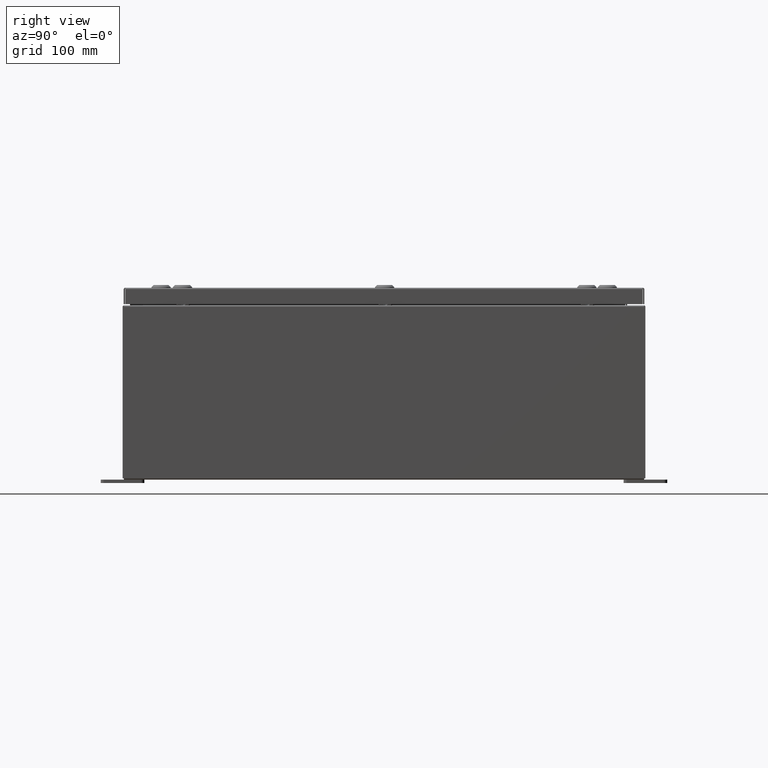
[diagram: clean part render]
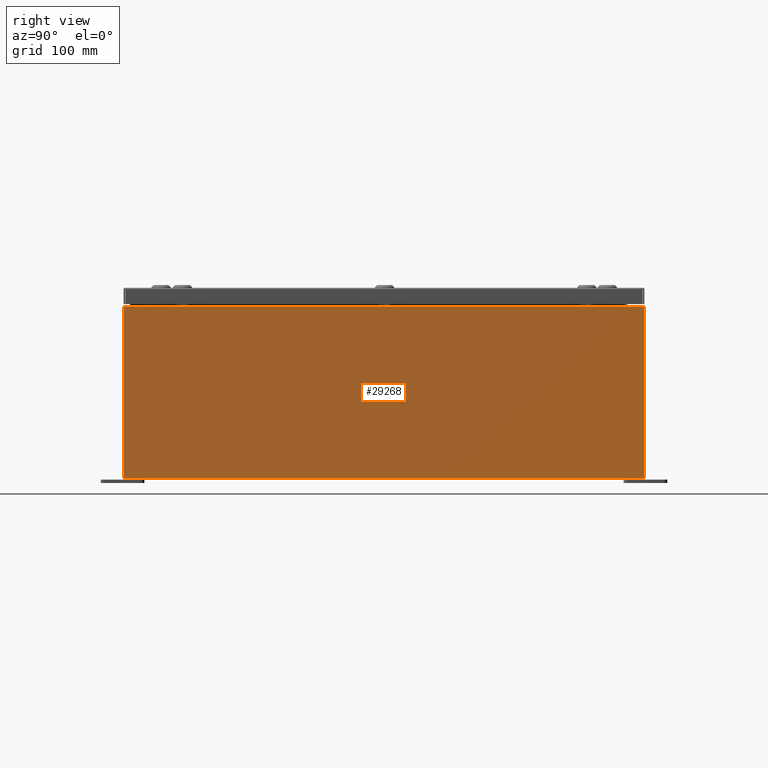
[diagram: same view with one face highlighted and labeled with its STEP entity id]
A machine part, right view. The second image highlights one B-rep face of the part: STEP entity #29268.
In plain terms, the highlighted planar face has unit normal (-1, 0, 0).
Its self-contained STEP definition (entity closure, byte-faithful):
#538 = VERTEX_POINT ( 'NONE', #25851 ) ;
#3159 = VERTEX_POINT ( 'NONE', #32435 ) ;
#3693 = ORIENTED_EDGE ( 'NONE', *, *, #19111, .T. ) ;
#4848 = DIRECTION ( 'NONE',  ( -3.523082860860888200E-015, -2.201926788038054900E-016, -1.000000000000000000 ) ) ;
#5686 = VECTOR ( 'NONE', #48313, 39.37007874015748100 ) ;
#11271 = EDGE_CURVE ( 'NONE', #44460, #3159, #25613, .T. ) ;
#11994 = ORIENTED_EDGE ( 'NONE', *, *, #11271, .T. ) ;
#12086 = DIRECTION ( 'NONE',  ( 3.523082860860888200E-015, -2.201926788038055100E-016, 1.000000000000000000 ) ) ;
#14779 = DIRECTION ( 'NONE',  ( -1.000000000000000000, 0.0000000000000000000, 3.523082860860887800E-015 ) ) ;
#15933 = CARTESIAN_POINT ( 'NONE',  ( 11.99999999999999600, 14.92529999999999800, 0.01299999999999766100 ) ) ;
#19111 = EDGE_CURVE ( 'NONE', #53251, #538, #51565, .T. ) ;
#20005 = FACE_OUTER_BOUND ( 'NONE', #22399, .T. ) ;
#20950 = CARTESIAN_POINT ( 'NONE',  ( 12.00000000000003200, 14.92529999999999800, 9.837599999999994800 ) ) ;
#22399 = EDGE_LOOP ( 'NONE', ( #57184, #11994, #38529, #3693 ) ) ;
#22715 = LINE ( 'NONE', #20950, #34326 ) ;
#24437 = VECTOR ( 'NONE', #12086, 39.37007874015748100 ) ;
#25613 = LINE ( 'NONE', #34505, #45765 ) ;
#25851 = CARTESIAN_POINT ( 'NONE',  ( 12.00000000000003200, 14.92529999999999800, 9.837599999999994800 ) ) ;
#25954 = DIRECTION ( 'NONE',  ( -0.0000000000000000000, -1.000000000000000000, -0.0000000000000000000 ) ) ;
#29268 = ADVANCED_FACE ( 'NONE', ( #20005 ), #54335, .F. ) ;
#32435 = CARTESIAN_POINT ( 'NONE',  ( 11.99999999999999600, -14.92530000000000000, 0.01299999999999997500 ) ) ;
#33581 = LINE ( 'NONE', #63314, #5686 ) ;
#34326 = VECTOR ( 'NONE', #25954, 39.37007874015748100 ) ;
#34505 = CARTESIAN_POINT ( 'NONE',  ( 11.99999999999999600, -14.92530000000000000, -3.925136619739177700E-014 ) ) ;
#38175 = CARTESIAN_POINT ( 'NONE',  ( 12.00000000000003200, -14.92529999999999800, 9.837600000000001900 ) ) ;
#38529 = ORIENTED_EDGE ( 'NONE', *, *, #50548, .F. ) ;
#44460 = VERTEX_POINT ( 'NONE', #38175 ) ;
#45765 = VECTOR ( 'NONE', #4848, 39.37007874015748100 ) ;
#48313 = DIRECTION ( 'NONE',  ( 2.579385833438731400E-031, -1.000000000000000000, 7.321388497823869400E-017 ) ) ;
#49525 = DIRECTION ( 'NONE',  ( 3.523082860860887800E-015, 0.0000000000000000000, 1.000000000000000000 ) ) ;
#50548 = EDGE_CURVE ( 'NONE', #53251, #3159, #33581, .T. ) ;
#50933 = EDGE_CURVE ( 'NONE', #538, #44460, #22715, .T. ) ;
#51565 = LINE ( 'NONE', #51615, #24437 ) ;
#51615 = CARTESIAN_POINT ( 'NONE',  ( 11.99999999999999600, 14.92530000000000000, -3.925136619739177700E-014 ) ) ;
#53083 = AXIS2_PLACEMENT_3D ( 'NONE', #64272, #14779, #49525 ) ;
#53251 = VERTEX_POINT ( 'NONE', #15933 ) ;
#54335 = PLANE ( 'NONE',  #53083 ) ;
#57184 = ORIENTED_EDGE ( 'NONE', *, *, #50933, .T. ) ;
#63314 = CARTESIAN_POINT ( 'NONE',  ( 11.99999999999999600, -14.92529999999999800, 0.01299999999999984700 ) ) ;
#64272 = CARTESIAN_POINT ( 'NONE',  ( 11.99999999999999600, 0.0000000000000000000, -4.253780798634221600E-014 ) ) ;